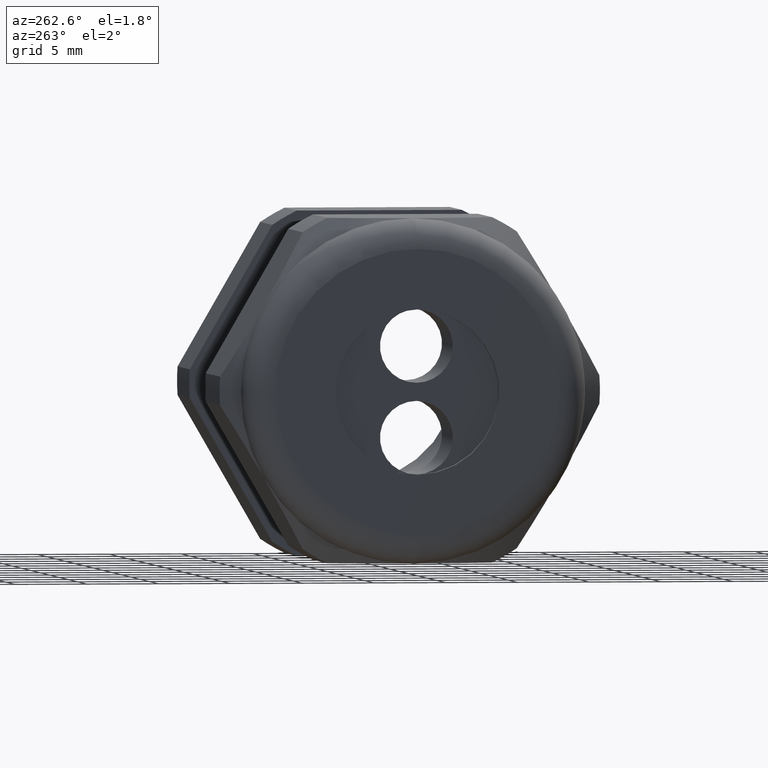
[diagram: clean part render]
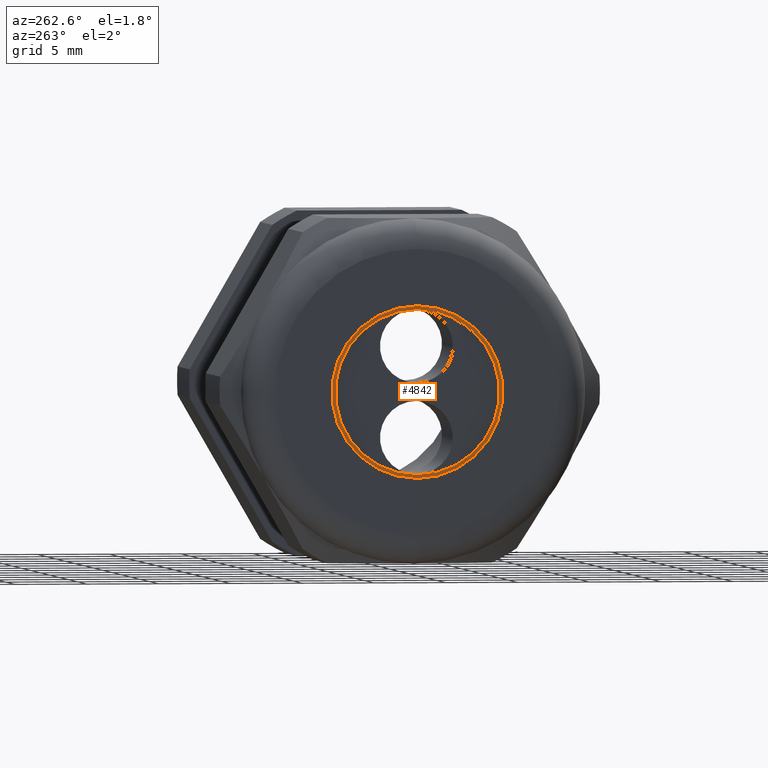
[diagram: same view with one face highlighted and labeled with its STEP entity id]
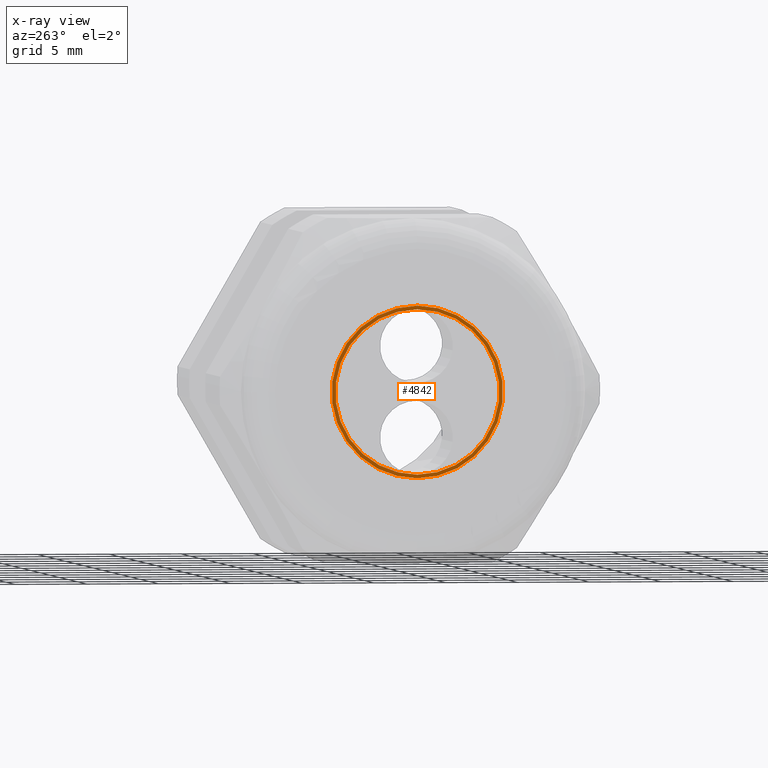
[diagram: x-ray of the same camera — body ghosted, the highlighted face saturated]
A machine part, auxiliary view. The second image highlights one B-rep face of the part: STEP entity #4842.
The next image is the same camera in x-ray: the body ghosted, the highlighted face saturated — about 0% of this face is hidden behind the body in this view.
In plain terms, the highlighted planar face has unit normal (-1, 0, 0).
Its self-contained STEP definition (entity closure, byte-faithful):
#3978 = FACE_BOUND ( 'NONE', #4843, .T. ) ;
#3987 = CARTESIAN_POINT ( 'NONE',  ( -1.370000000000000100, 0.0000000000000000000, 0.2349999999999999900 ) ) ;
#3989 = DIRECTION ( 'NONE',  ( 0.0000000000000000000, 0.0000000000000000000, 1.000000000000000000 ) ) ;
#3991 = DIRECTION ( 'NONE',  ( -1.000000000000000000, 0.0000000000000000000, 0.0000000000000000000 ) ) ;
#3993 = CARTESIAN_POINT ( 'NONE',  ( -1.370000000000000100, 0.0000000000000000000, 0.0000000000000000000 ) ) ;
#3995 = AXIS2_PLACEMENT_3D ( 'NONE', #3993, #3991, #3989 ) ;
#3997 = CIRCLE ( 'NONE', #3995, 0.2349999999999999900 ) ;
#4089 = DIRECTION ( 'NONE',  ( 0.0000000000000000000, 0.0000000000000000000, 1.000000000000000000 ) ) ;
#4090 = DIRECTION ( 'NONE',  ( -1.000000000000000000, 0.0000000000000000000, 0.0000000000000000000 ) ) ;
#4091 = CARTESIAN_POINT ( 'NONE',  ( -1.370000000000000100, 0.0000000000000000000, 0.0000000000000000000 ) ) ;
#4093 = AXIS2_PLACEMENT_3D ( 'NONE', #4091, #4090, #4089 ) ;
#4095 = PLANE ( 'NONE',  #4093 ) ;
#4098 = FACE_OUTER_BOUND ( 'NONE', #4769, .T. ) ;
#4274 = DIRECTION ( 'NONE',  ( 0.0000000000000000000, 0.0000000000000000000, 1.000000000000000000 ) ) ;
#4275 = DIRECTION ( 'NONE',  ( -1.000000000000000000, 0.0000000000000000000, 0.0000000000000000000 ) ) ;
#4276 = CARTESIAN_POINT ( 'NONE',  ( -1.370000000000000100, 0.0000000000000000000, 0.0000000000000000000 ) ) ;
#4277 = AXIS2_PLACEMENT_3D ( 'NONE', #4276, #4275, #4274 ) ;
#4278 = CIRCLE ( 'NONE', #4277, 0.2349999999999999900 ) ;
#4501 = AXIS2_PLACEMENT_3D ( 'NONE', #4562, #4561, #4560 ) ;
#4502 = CIRCLE ( 'NONE', #4501, 0.2249999999999999800 ) ;
#4503 = DIRECTION ( 'NONE',  ( 0.0000000000000000000, 0.0000000000000000000, 1.000000000000000000 ) ) ;
#4504 = DIRECTION ( 'NONE',  ( -1.000000000000000000, 0.0000000000000000000, 0.0000000000000000000 ) ) ;
#4505 = CARTESIAN_POINT ( 'NONE',  ( -1.370000000000000100, 0.0000000000000000000, 0.0000000000000000000 ) ) ;
#4506 = AXIS2_PLACEMENT_3D ( 'NONE', #4505, #4504, #4503 ) ;
#4507 = CIRCLE ( 'NONE', #4506, 0.2249999999999999800 ) ;
#4508 = CARTESIAN_POINT ( 'NONE',  ( -1.370000000000000100, 0.0000000000000000000, 0.2249999999999999800 ) ) ;
#4547 = CARTESIAN_POINT ( 'NONE',  ( -1.370000000000000100, 2.755455298081544500E-017, -0.2249999999999999800 ) ) ;
#4555 = CARTESIAN_POINT ( 'NONE',  ( -1.370000000000000100, 2.877919977996279800E-017, -0.2349999999999999900 ) ) ;
#4560 = DIRECTION ( 'NONE',  ( 0.0000000000000000000, 0.0000000000000000000, 1.000000000000000000 ) ) ;
#4561 = DIRECTION ( 'NONE',  ( -1.000000000000000000, 0.0000000000000000000, 0.0000000000000000000 ) ) ;
#4562 = CARTESIAN_POINT ( 'NONE',  ( -1.370000000000000100, 0.0000000000000000000, 0.0000000000000000000 ) ) ;
#4638 = EDGE_CURVE ( 'NONE', #4773, #4838, #4278, .T. ) ;
#4760 = ORIENTED_EDGE ( 'NONE', *, *, #4638, .T. ) ;
#4763 = VERTEX_POINT ( 'NONE', #4508 ) ;
#4764 = ORIENTED_EDGE ( 'NONE', *, *, #4766, .F. ) ;
#4765 = ORIENTED_EDGE ( 'NONE', *, *, #4833, .T. ) ;
#4766 = EDGE_CURVE ( 'NONE', #4778, #4763, #4507, .T. ) ;
#4767 = EDGE_CURVE ( 'NONE', #4763, #4778, #4502, .T. ) ;
#4768 = ORIENTED_EDGE ( 'NONE', *, *, #4767, .F. ) ;
#4769 = EDGE_LOOP ( 'NONE', ( #4765, #4760 ) ) ;
#4773 = VERTEX_POINT ( 'NONE', #4555 ) ;
#4778 = VERTEX_POINT ( 'NONE', #4547 ) ;
#4833 = EDGE_CURVE ( 'NONE', #4838, #4773, #3997, .T. ) ;
#4838 = VERTEX_POINT ( 'NONE', #3987 ) ;
#4842 = ADVANCED_FACE ( 'NONE', ( #3978, #4098 ), #4095, .T. ) ;
#4843 = EDGE_LOOP ( 'NONE', ( #4768, #4764 ) ) ;